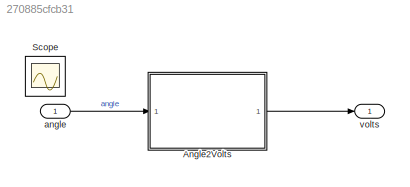
MODEL slx_270885cfcb31
KIND model
CONFIG AbsTol = auto
CONFIG EnableMultiTasking = on
CONFIG FixedStep = auto
CONFIG MaxStep = auto
CONFIG MinStep = auto
CONFIG PreLoadFcn = t = linspace(0,10,101)';\nu = linspace(0,pi/2,101)';\ndegConv = 180/pi;
CONFIG RelTol = 1e-3
CONFIG SampleTimeConstraint = Unconstrained
CONFIG Solver = FixedStepDiscrete
CONFIG SolverName = FixedStepDiscrete
CONFIG StartTime = 0.0
CONFIG StopTime = 10.0
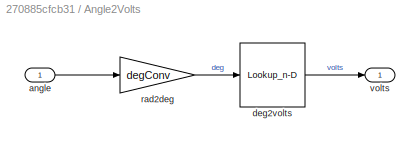
BLOCK [SubSystem] Angle2Volts
  Ports = [1, 1]
  RequestExecContextInheritance = off
BLOCK [Inport] Angle2Volts/angle 
  IconDisplay = Port number
BLOCK [Lookup_n-D] Angle2Volts/deg2volts
  BreakpointsForDimension1 = [0 90]
  NumberOfTableDimensions = 1
  Ports = [1, 1]
  RndMeth = Simplest
  Table = [0.5 4.5]
BLOCK [Gain] Angle2Volts/rad2deg
  Gain = degConv
BLOCK [Outport] Angle2Volts/volts
  IconDisplay = Port number
BLOCK [Scope] Scope
  Floating = off
  IOType = viewer
  NumInputPorts = 1
  Ports = []
  ScopeSpecificationString = Simulink.scopes.TimeScopeBlockCfg('CurrentConfiguration', extmgr.ConfigurationSet(extmgr.Configuration('Core','General UI',true),extmgr.Configuration('Core','Source UI',true),extmgr.Configuration('Sources','WiredSimulink',true,'DataLoggingMaxPoints','7500','DataLoggingLimitDataPoints',true,'DataLoggingSaveFormat','Array','DataLoggingDecimation','1','DataLoggingDecimateData',true),extmgr.Configurat...<+2254ch>
BLOCK [Inport] angle 
  IconDisplay = Port number
BLOCK [Outport] volts
  IconDisplay = Port number
LINE Angle2Volts/angle :1 -> Angle2Volts/rad2deg:1
LINE Angle2Volts/deg2volts:1 -> Angle2Volts/volts:1
LINE Angle2Volts/rad2deg:1 -> Angle2Volts/deg2volts:1
LINE Angle2Volts:1 -> volts:1
LINE angle :1 -> Angle2Volts:1
